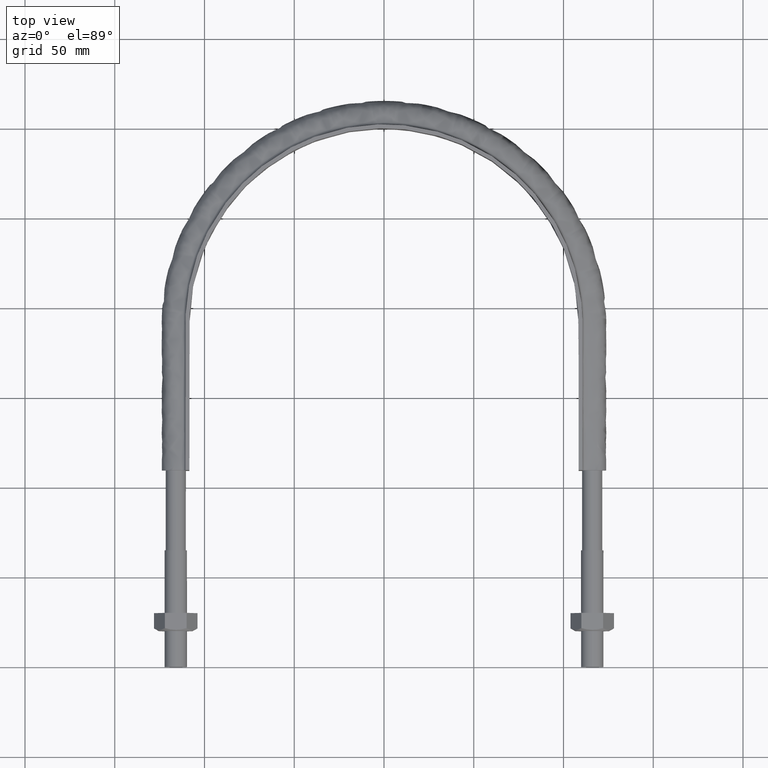
[diagram: clean part render]
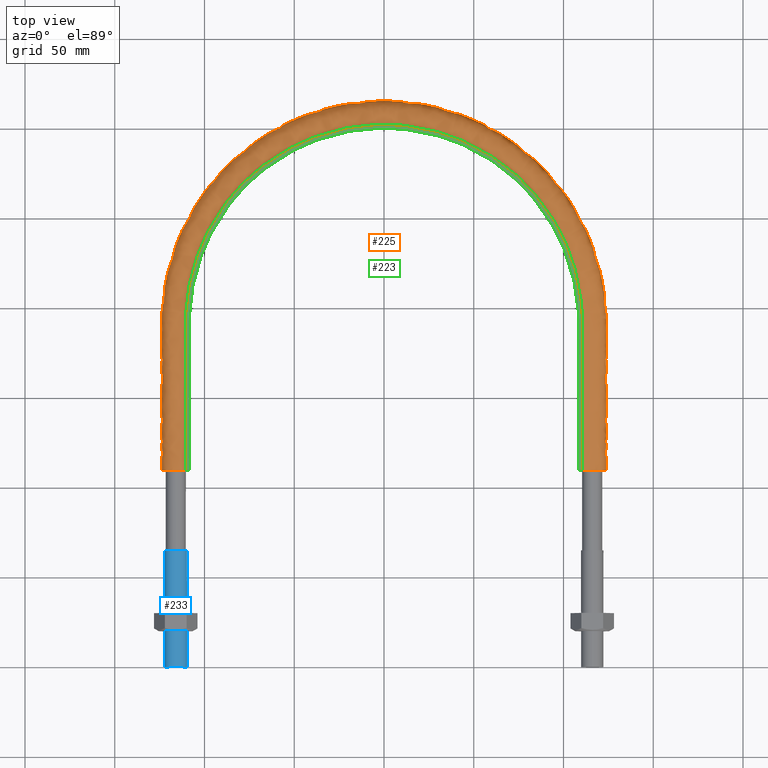
[diagram: same view with three faces highlighted in distinct colors, each labeled with its STEP entity id]
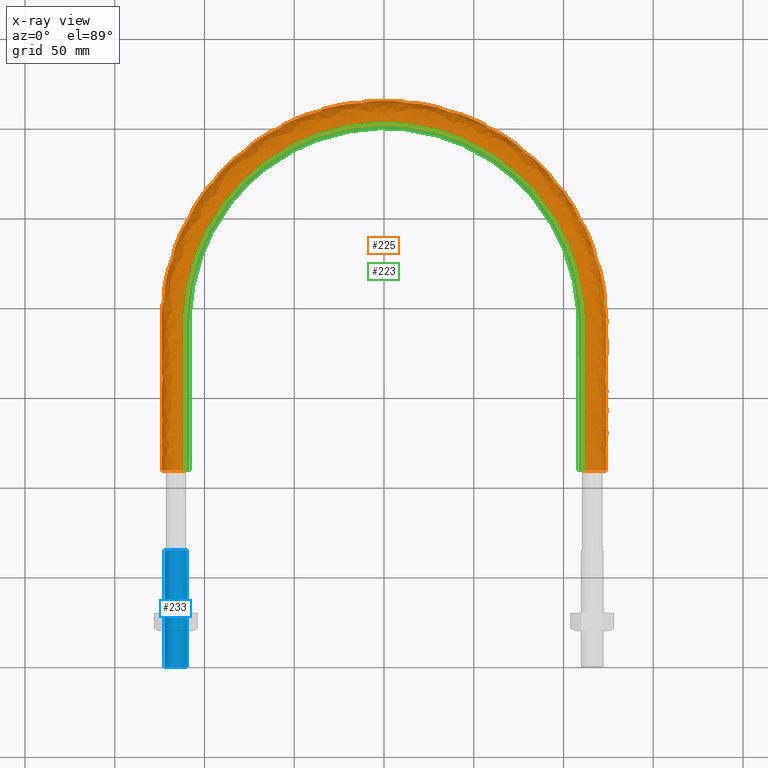
[diagram: x-ray of the same camera — body ghosted, the three highlighted faces saturated]
A machine part, top view with three faces highlighted in distinct colors.
The next image is the same camera in x-ray (body ghosted, the three faces saturated) — at least one of them is partly hidden behind the body in this view.
Their STEP definitions:

[orange] entity #225 — the highlighted face is a freeform B-spline surface patch.
#225 = ADVANCED_FACE( '', ( #275 ), #276, .F. );
#275 = FACE_OUTER_BOUND( '', #564, .T. );
#276 = B_SPLINE_SURFACE_WITH_KNOTS( '', 3, 3, ( ( #565, #566, #567, #568, #569, #570, #571, #572, #573, #574, #575, #576, #577, #578, #579, #580, #581 ), ( #582, #583, #584, #585, #586, #587, #588, #589, #590, #591, #592, #593, #594, #595, #596, #597, #598 ), ( #599, #600, #601, #602, #603, #604, #605, #606, #607, #608, #609, #610, #611, #612, #613, #614, #615 ), ( #616, #617, #618, #619, #620, #621, #622, #623, #624, #625, #626, #627, #628, #629, #630, #631, #632 ), ( #633, #634, #635, #636, #637, #638, #639, #640, #641, #642, #643, #644, #645, #646, #647, #648, #649 ), ( #650, #651, #652, #653, #654, #655, #656, #657, #658, #659, #660, #661, #662, #663, #664, #665, #666 ), ( #667, #668, #669, #670, #671, #672, #673, #674, #675, #676, #677, #678, #679, #680, #681, #682, #683 ), ( #684, #685, #686, #687, #688, #689, #690, #691, #692, #693, #694, #695, #696, #697, #698, #699, #700 ), ( #701, #702, #703, #704, #705, #706, #707, #708, #709, #710, #711, #712, #713, #714, #715, #716, #717 ), ( #718, #719, #720, #721, #722, #723, #724, #725, #726, #727, #728, #729, #730, #731, #732, #733, #734 ), ( #735, #736, #737, #738, #739, #740, #741, #742, #743, #744, #745, #746, #747, #748, #749, #750, #751 ), ( #752, #753, #754, #755, #756, #757, #758, #759, #760, #761, #762, #763, #764, #765, #766, #767, #768 ), ( #769, #770, #771, #772, #773, #774, #775, #776, #777, #778, #779, #780, #781, #782, #783, #784, #785 ), ( #786, #787, #788, #789, #790, #791, #792, #793, #794, #795, #796, #797, #798, #799, #800, #801, #802 ), ( #803, #804, #805, #806, #807, #808, #809, #810, #811, #812, #813, #814, #815, #816, #817, #818, #819 ), ( #820, #821, #822, #823, #824, #825, #826, #827, #828, #829, #830, #831, #832, #833, #834, #835, #836 ), ( #837, #838, #839, #840, #841, #842, #843, #844, #845, #846, #847, #848, #849, #850, #851, #852, #853 ), ( #854, #855, #856, #857, #858, #859, #860, #861, #862, #863, #864, #865, #866, #867, #868, #869, #870 ), ( #871, #872, #873, #874, #875, #876, #877, #878, #879, #880, #881, #882, #883, #884, #885, #886, #887 ), ( #888, #889, #890, #891, #892, #893, #894, #895, #896, #897, #898, #899, #900, #901, #902, #903, #904 ), ( #905, #906, #907, #908, #909, #910, #911, #912, #913, #914, #915, #916, #917, #918, #919, #920, #921 ), ( #922, #923, #924, #925, #926, #927, #928, #929, #930, #931, #932, #933, #934, #935, #936, #937, #938 ), ( #939, #940, #941, #942, #943, #944, #945, #946, #947, #948, #949, #950, #951, #952, #953, #954, #955 ), ( #956, #957, #958, #959, #960, #961, #962, #963, #964, #965, #966, #967, #968, #969, #970, #971, #972 ), ( #973, #974, #975, #976, #977, #978, #979, #980, #981, #982, #983, #984, #985, #986, #987, #988, #989 ), ( #990, #991, #992, #993, #994, #995, #996, #997, #998, #999, #1000, #1001, #1002, #1003, #1004, #1005, #1006 ), ( #1007, #1008, #1009, #1010, #1011, #1012, #1013, #1014, #1015, #1016, #1017, #1018, #1019, #1020, #1021, #1022, #1023 ), ( #1024, #1025, #1026, #1027, #1028, #1029, #1030, #1031, #1032, #1033, #1034, #1035, #1036, #1037, #1038, #1039, #1040 ), ( #1041, #1042, #1043, #1044, #1045, #1046, #1047, #1048, #1049, #1050, #1051, #1052, #1053, #1054, #1055, #1056, #1057 ), ( #1058, #1059, #1060, #1061, #1062, #1063, #1064, #1065, #1066, #1067, #1068, #1069, #1070, #1071, #1072, #1073, #1074 ), ( #1075, #1076, #1077, #1078, #1079, #1080, #1081, #1082, #1083, #1084, #1085, #1086, #1087, #1088, #1089, #1090, #1091 ) ), .UNSPECIFIED., .F., .F., .F., ( 4, 3, 1, 1, 1, 3, 3, 1, 1, 1, 3, 3, 1, 1, 1, 3, 4 ), ( 4, 3, 1, 1, 1, 1, 1, 1, 1, 3, 4 ), ( 0.105263157894737, 0.157894736842105, 0.210526315789474, 0.263157894736842, 0.315789473684211, 0.368421052631579, 0.421052631578947, 0.473684210526316, 0.526315789473684, 0.578947368421053, 0.631578947368421, 0.684210526315789, 0.736842105263158, 0.789473684210526, 0.842105263157895, 0.894736842105263, 0.947368421052632 ), ( 0.000000000000000, 1.00000000000000, 2.00000000000000, 3.00000000000000, 4.00000000000000, 5.00000000000000, 6.00000000000000, 7.00000000000000, 8.00000000000000, 9.00000000000000, 10.0000000000000 ), .UNSPECIFIED. );
#564 = EDGE_LOOP( '', ( #1417, #1418, #1419, #1420 ) );
#565 = CARTESIAN_POINT( '', ( 110.600000000000, 109.500000000000, -15.0000000000000 ) );
#566 = CARTESIAN_POINT( '', ( 110.600000000000, 136.866666666667, -15.0000000000000 ) );
#567 = CARTESIAN_POINT( '', ( 110.600000000000, 164.233333333333, -15.0000000000000 ) );
#568 = CARTESIAN_POINT( '', ( 110.600000000000, 191.600000000000, -15.0000000000000 ) );
#569 = CARTESIAN_POINT( '', ( 110.600000000000, 206.066236657480, -15.0000000000000 ) );
#570 = CARTESIAN_POINT( '', ( 104.841264996974, 235.031001602308, -15.0000000000000 ) );
#571 = CARTESIAN_POINT( '', ( 80.2420302850801, 271.840865123178, -15.0000000000000 ) );
#572 = CARTESIAN_POINT( '', ( 43.4266738580984, 296.441597900375, -15.0000000000000 ) );
#573 = CARTESIAN_POINT( '', ( 8.94018970817697E-014, 305.079201049813, -15.0000000000000 ) );
#574 = CARTESIAN_POINT( '', ( -43.4266738580983, 296.441597900375, -15.0000000000000 ) );
#575 = CARTESIAN_POINT( '', ( -80.2420302850801, 271.840865123178, -15.0000000000000 ) );
#576 = CARTESIAN_POINT( '', ( -104.841264996974, 235.031001602308, -15.0000000000000 ) );
#577 = CARTESIAN_POINT( '', ( -110.600000000000, 206.066236657480, -15.0000000000000 ) );
#578 = CARTESIAN_POINT( '', ( -110.600000000000, 191.600000000000, -15.0000000000000 ) );
#579 = CARTESIAN_POINT( '', ( -110.600000000000, 164.233333333333, -15.0000000000000 ) );
#580 = CARTESIAN_POINT( '', ( -110.600000000000, 136.866666666667, -15.0000000000000 ) );
#581 = CARTESIAN_POINT( '', ( -110.600000000000, 109.500000000000, -15.0000000000000 ) );
#582 = CARTESIAN_POINT( '', ( 110.600000000000, 109.500000000000, -13.2666666666667 ) );
#583 = CARTESIAN_POINT( '', ( 110.600000000000, 136.866666666667, -13.2666666666667 ) );
#584 = CARTESIAN_POINT( '', ( 110.600000000000, 164.233333333333, -13.2666666666667 ) );
#585 = CARTESIAN_POINT( '', ( 110.600000000000, 191.600000000000, -13.2666666666667 ) );
#586 = CARTESIAN_POINT( '', ( 110.600000000000, 206.066236657480, -13.2666666666667 ) );
#587 = CARTESIAN_POINT( '', ( 104.841264996974, 235.031001602308, -13.2666666666667 ) );
#588 = CARTESIAN_POINT( '', ( 80.2420302850802, 271.840865123178, -13.2666666666667 ) );
#589 = CARTESIAN_POINT( '', ( 43.4266738580984, 296.441597900375, -13.2666666666667 ) );
#590 = CARTESIAN_POINT( '', ( 9.11366205577465E-014, 305.079201049813, -13.2666666666667 ) );
#591 = CARTESIAN_POINT( '', ( -43.4266738580984, 296.441597900375, -13.2666666666667 ) );
#592 = CARTESIAN_POINT( '', ( -80.2420302850801, 271.840865123178, -13.2666666666667 ) );
#593 = CARTESIAN_POINT( '', ( -104.841264996974, 235.031001602308, -13.2666666666667 ) );
#594 = CARTESIAN_POINT( '', ( -110.600000000000, 206.066236657480, -13.2666666666667 ) );
#595 = CARTESIAN_POINT( '', ( -110.600000000000, 191.600000000000, -13.2666666666667 ) );
#596 = CARTESIAN_POINT( '', ( -110.600000000000, 164.233333333333, -13.2666666666667 ) );
#597 = CARTESIAN_POINT( '', ( -110.600000000000, 136.866666666667, -13.2666666666667 ) );
#598 = CARTESIAN_POINT( '', ( -110.600000000000, 109.500000000000, -13.2666666666667 ) );
#599 = CARTESIAN_POINT( '', ( 110.600000000000, 109.500000000000, -11.5333333333333 ) );
#600 = CARTESIAN_POINT( '', ( 110.600000000000, 136.866666666667, -11.5333333333333 ) );
#601 = CARTESIAN_POINT( '', ( 110.600000000000, 164.233333333333, -11.5333333333333 ) );
#602 = CARTESIAN_POINT( '', ( 110.600000000000, 191.600000000000, -11.5333333333333 ) );
#603 = CARTESIAN_POINT( '', ( 110.600000000000, 206.066236657480, -11.5333333333333 ) );
#604 = CARTESIAN_POINT( '', ( 104.841264996974, 235.031001602308, -11.5333333333333 ) );
#605 = CARTESIAN_POINT( '', ( 80.2420302850802, 271.840865123178, -11.5333333333333 ) );
#606 = CARTESIAN_POINT( '', ( 43.4266738580984, 296.441597900375, -11.5333333333333 ) );
#607 = CARTESIAN_POINT( '', ( 8.59324501298161E-014, 305.079201049813, -11.5333333333333 ) );
#608 = CARTESIAN_POINT( '', ( -43.4266738580983, 296.441597900375, -11.5333333333333 ) );
#609 = CARTESIAN_POINT( '', ( -80.2420302850801, 271.840865123178, -11.5333333333333 ) );
#610 = CARTESIAN_POINT( '', ( -104.841264996974, 235.031001602308, -11.5333333333333 ) );
#611 = CARTESIAN_POINT( '', ( -110.600000000000, 206.066236657480, -11.5333333333333 ) );
#612 = CARTESIAN_POINT( '', ( -110.600000000000, 191.600000000000, -11.5333333333333 ) );
#613 = CARTESIAN_POINT( '', ( -110.600000000000, 164.233333333333, -11.5333333333333 ) );
#614 = CARTESIAN_POINT( '', ( -110.600000000000, 136.866666666667, -11.5333333333333 ) );
#615 = CARTESIAN_POINT( '', ( -110.600000000000, 109.500000000000, -11.5333333333333 ) );
#616 = CARTESIAN_POINT( '', ( 110.600000000000, 109.500000000000, -9.79999999999999 ) );
#617 = CARTESIAN_POINT( '', ( 110.600000000000, 136.866666666667, -9.79999999999999 ) );
#618 = CARTESIAN_POINT( '', ( 110.600000000000, 164.233333333333, -9.79999999999999 ) );
#619 = CARTESIAN_POINT( '', ( 110.600000000000, 191.600000000000, -9.79999999999999 ) );
#620 = CARTESIAN_POINT( '', ( 110.600000000000, 206.066236657480, -9.79999999999999 ) );
#621 = CARTESIAN_POINT( '', ( 104.841264996974, 235.031001602308, -9.79999999999999 ) );
#622 = CARTESIAN_POINT( '', ( 80.2420302850802, 271.840865123178, -9.79999999999999 ) );
#623 = CARTESIAN_POINT( '', ( 43.4266738580984, 296.441597900375, -9.80000000000000 ) );
#624 = CARTESIAN_POINT( '', ( 8.24630031778625E-014, 305.079201049813, -9.79999999999999 ) );
#625 = CARTESIAN_POINT( '', ( -43.4266738580983, 296.441597900375, -9.79999999999999 ) );
#626 = CARTESIAN_POINT( '', ( -80.2420302850801, 271.840865123178, -9.79999999999999 ) );
#627 = CARTESIAN_POINT( '', ( -104.841264996974, 235.031001602308, -9.79999999999999 ) );
#628 = CARTESIAN_POINT( '', ( -110.600000000000, 206.066236657480, -9.79999999999999 ) );
#629 = CARTESIAN_POINT( '', ( -110.600000000000, 191.600000000000, -9.79999999999999 ) );
#630 = CARTESIAN_POINT( '', ( -110.600000000000, 164.233333333333, -9.79999999999999 ) );
#631 = CARTESIAN_POINT( '', ( -110.600000000000, 136.866666666667, -9.79999999999999 ) );
#632 = CARTESIAN_POINT( '', ( -110.600000000000, 109.500000000000, -9.79999999999999 ) );
#633 = CARTESIAN_POINT( '', ( 110.600000000000, 109.500000000000, -9.53823584172332 ) );
#634 = CARTESIAN_POINT( '', ( 110.600000000000, 136.866666666667, -9.53823584172332 ) );
#635 = CARTESIAN_POINT( '', ( 110.600000000000, 164.233333333333, -9.53823584172332 ) );
#636 = CARTESIAN_POINT( '', ( 110.600000000000, 191.600000000000, -9.53823584172332 ) );
#637 = CARTESIAN_POINT( '', ( 110.600000000000, 206.066236657480, -9.53823584172332 ) );
#638 = CARTESIAN_POINT( '', ( 104.841264996974, 235.031001602308, -9.53823584172333 ) );
#639 = CARTESIAN_POINT( '', ( 80.2420302850802, 271.840865123178, -9.53823584172332 ) );
#640 = CARTESIAN_POINT( '', ( 43.4266738580984, 296.441597900375, -9.53823584172333 ) );
#641 = CARTESIAN_POINT( '', ( 8.59324501298161E-014, 305.079201049813, -9.53823584172332 ) );
#642 = CARTESIAN_POINT( '', ( -43.4266738580983, 296.441597900375, -9.53823584172332 ) );
#643 = CARTESIAN_POINT( '', ( -80.2420302850801, 271.840865123178, -9.53823584172333 ) );
#644 = CARTESIAN_POINT( '', ( -104.841264996974, 235.031001602308, -9.53823584172333 ) );
#645 = CARTESIAN_POINT( '', ( -110.600000000000, 206.066236657480, -9.53823584172332 ) );
#646 = CARTESIAN_POINT( '', ( -110.600000000000, 191.600000000000, -9.53823584172332 ) );
#647 = CARTESIAN_POINT( '', ( -110.600000000000, 164.233333333333, -9.53823584172332 ) );
#648 = CARTESIAN_POINT( '', ( -110.600000000000, 136.866666666667, -9.53823584172332 ) );
#649 = CARTESIAN_POINT( '', ( -110.600000000000, 109.500000000000, -9.53823584172332 ) );
#650 = CARTESIAN_POINT( '', ( 110.704136256836, 109.500000000000, -9.01470752517000 ) );
#651 = CARTESIAN_POINT( '', ( 110.704136256836, 136.866666666667, -9.01470752517000 ) );
#652 = CARTESIAN_POINT( '', ( 110.704136256836, 164.233333333333, -9.01470752517000 ) );
#653 = CARTESIAN_POINT( '', ( 110.704136256836, 191.600000000000, -9.01470752517000 ) );
#654 = CARTESIAN_POINT( '', ( 110.704136256836, 206.080045983731, -9.01470752517000 ) );
#655 = CARTESIAN_POINT( '', ( 104.939979073816, 235.071806853384, -9.01470752517000 ) );
#656 = CARTESIAN_POINT( '', ( 80.3175827685775, 271.916440076230, -9.01470752517000 ) );
#657 = CARTESIAN_POINT( '', ( 43.4675625675235, 296.540305557344, -9.01470752517000 ) );
#658 = CARTESIAN_POINT( '', ( 8.94149820688426E-014, 305.186051606582, -9.01470752517000 ) );
#659 = CARTESIAN_POINT( '', ( -43.4675625675235, 296.540305557344, -9.01470752517000 ) );
#660 = CARTESIAN_POINT( '', ( -80.3175827685774, 271.916440076230, -9.01470752517000 ) );
#661 = CARTESIAN_POINT( '', ( -104.939979073816, 235.071806853384, -9.01470752517000 ) );
#662 = CARTESIAN_POINT( '', ( -110.704136256836, 206.080045983731, -9.01470752517000 ) );
#663 = CARTESIAN_POINT( '', ( -110.704136256836, 191.600000000000, -9.01470752517000 ) );
#664 = CARTESIAN_POINT( '', ( -110.704136256836, 164.233333333333, -9.01470752517000 ) );
#665 = CARTESIAN_POINT( '', ( -110.704136256836, 136.866666666667, -9.01470752517000 ) );
#666 = CARTESIAN_POINT( '', ( -110.704136256836, 109.500000000000, -9.01470752517000 ) );
#667 = CARTESIAN_POINT( '', ( 111.148968710939, 109.500000000000, -8.34896871093886 ) );
#668 = CARTESIAN_POINT( '', ( 111.148968710939, 136.866666666667, -8.34896871093886 ) );
#669 = CARTESIAN_POINT( '', ( 111.148968710939, 164.233333333333, -8.34896871093886 ) );
#670 = CARTESIAN_POINT( '', ( 111.148968710939, 191.600000000000, -8.34896871093886 ) );
#671 = CARTESIAN_POINT( '', ( 111.148968710939, 206.139034434753, -8.34896871093886 ) );
#672 = CARTESIAN_POINT( '', ( 105.361649934575, 235.246112138864, -8.34896871093887 ) );
#673 = CARTESIAN_POINT( '', ( 80.6403156732241, 272.239268962697, -8.34896871093886 ) );
#674 = CARTESIAN_POINT( '', ( 43.6422243569071, 296.961948994725, -8.34896871093887 ) );
#675 = CARTESIAN_POINT( '', ( 8.42667059767411E-014, 305.642478569046, -8.34896871093886 ) );
#676 = CARTESIAN_POINT( '', ( -43.6422243569071, 296.961948994725, -8.34896871093886 ) );
#677 = CARTESIAN_POINT( '', ( -80.6403156732240, 272.239268962697, -8.34896871093887 ) );
#678 = CARTESIAN_POINT( '', ( -105.361649934575, 235.246112138864, -8.34896871093886 ) );
#679 = CARTESIAN_POINT( '', ( -111.148968710939, 206.139034434753, -8.34896871093886 ) );
#680 = CARTESIAN_POINT( '', ( -111.148968710939, 191.600000000000, -8.34896871093886 ) );
#681 = CARTESIAN_POINT( '', ( -111.148968710939, 164.233333333333, -8.34896871093886 ) );
#682 = CARTESIAN_POINT( '', ( -111.148968710939, 136.866666666667, -8.34896871093886 ) );
#683 = CARTESIAN_POINT( '', ( -111.148968710939, 109.500000000000, -8.34896871093886 ) );
#684 = CARTESIAN_POINT( '', ( 111.814707525170, 109.500000000000, -7.90413625683590 ) );
#685 = CARTESIAN_POINT( '', ( 111.814707525170, 136.866666666667, -7.90413625683590 ) );
#686 = CARTESIAN_POINT( '', ( 111.814707525170, 164.233333333333, -7.90413625683590 ) );
#687 = CARTESIAN_POINT( '', ( 111.814707525170, 191.600000000000, -7.90413625683590 ) );
#688 = CARTESIAN_POINT( '', ( 111.814707525170, 206.227316890483, -7.90413625683590 ) );
#689 = CARTESIAN_POINT( '', ( 105.992724974734, 235.506978433578, -7.90413625683590 ) );
#690 = CARTESIAN_POINT( '', ( 81.1233195981200, 272.722416534538, -7.90413625683590 ) );
#691 = CARTESIAN_POINT( '', ( 43.9036241974161, 297.592982992900, -7.90413625683590 ) );
#692 = CARTESIAN_POINT( '', ( 8.26156342858662E-014, 306.325569791305, -7.90413625683590 ) );
#693 = CARTESIAN_POINT( '', ( -43.9036241974160, 297.592982992900, -7.90413625683589 ) );
#694 = CARTESIAN_POINT( '', ( -81.1233195981199, 272.722416534538, -7.90413625683590 ) );
#695 = CARTESIAN_POINT( '', ( -105.992724974733, 235.506978433578, -7.90413625683590 ) );
#696 = CARTESIAN_POINT( '', ( -111.814707525170, 206.227316890483, -7.90413625683590 ) );
#697 = CARTESIAN_POINT( '', ( -111.814707525170, 191.600000000000, -7.90413625683590 ) );
#698 = CARTESIAN_POINT( '', ( -111.814707525170, 164.233333333333, -7.90413625683590 ) );
#699 = CARTESIAN_POINT( '', ( -111.814707525170, 136.866666666667, -7.90413625683590 ) );
#700 = CARTESIAN_POINT( '', ( -111.814707525170, 109.500000000000, -7.90413625683590 ) );
#701 = CARTESIAN_POINT( '', ( 112.338235841723, 109.500000000000, -7.79999999999999 ) );
#702 = CARTESIAN_POINT( '', ( 112.338235841723, 136.866666666667, -7.79999999999999 ) );
#703 = CARTESIAN_POINT( '', ( 112.338235841723, 164.233333333333, -7.79999999999999 ) );
#704 = CARTESIAN_POINT( '', ( 112.338235841723, 191.600000000000, -7.79999999999999 ) );
#705 = CARTESIAN_POINT( '', ( 112.338235841723, 206.296741061707, -7.79999999999999 ) );
#706 = CARTESIAN_POINT( '', ( 106.488994151670, 235.712120283800, -7.79999999999999 ) );
#707 = CARTESIAN_POINT( '', ( 81.5031475821342, 273.102357480635, -7.79999999999999 ) );
#708 = CARTESIAN_POINT( '', ( 44.1091856210909, 298.089219894955, -7.79999999999999 ) );
#709 = CARTESIAN_POINT( '', ( 7.74772465302014E-014, 306.862743815107, -7.79999999999999 ) );
#710 = CARTESIAN_POINT( '', ( -44.1091856210909, 298.089219894956, -7.79999999999998 ) );
#711 = CARTESIAN_POINT( '', ( -81.5031475821342, 273.102357480635, -7.79999999999999 ) );
#712 = CARTESIAN_POINT( '', ( -106.488994151670, 235.712120283800, -7.79999999999999 ) );
#713 = CARTESIAN_POINT( '', ( -112.338235841723, 206.296741061707, -7.79999999999999 ) );
#714 = CARTESIAN_POINT( '', ( -112.338235841723, 191.600000000000, -7.79999999999999 ) );
#715 = CARTESIAN_POINT( '', ( -112.338235841723, 164.233333333333, -7.79999999999999 ) );
#716 = CARTESIAN_POINT( '', ( -112.338235841723, 136.866666666667, -7.79999999999999 ) );
#717 = CARTESIAN_POINT( '', ( -112.338235841723, 109.500000000000, -7.79999999999999 ) );
#718 = CARTESIAN_POINT( '', ( 112.600000000000, 109.500000000000, -7.79999999999999 ) );
#719 = CARTESIAN_POINT( '', ( 112.600000000000, 136.866666666667, -7.79999999999999 ) );
#720 = CARTESIAN_POINT( '', ( 112.600000000000, 164.233333333333, -7.79999999999999 ) );
#721 = CARTESIAN_POINT( '', ( 112.600000000000, 191.600000000000, -7.79999999999999 ) );
#722 = CARTESIAN_POINT( '', ( 112.600000000000, 206.331453147319, -7.79999999999999 ) );
#723 = CARTESIAN_POINT( '', ( 106.737128740138, 235.814691208912, -7.79999999999999 ) );
#724 = CARTESIAN_POINT( '', ( 81.6930615741413, 273.292327953684, -7.79999999999999 ) );
#725 = CARTESIAN_POINT( '', ( 44.2119663329284, 298.337338345983, -7.79999999999999 ) );
#726 = CARTESIAN_POINT( '', ( 8.09795848182879E-014, 307.131330827008, -7.79999999999998 ) );
#727 = CARTESIAN_POINT( '', ( -44.2119663329283, 298.337338345983, -7.79999999999998 ) );
#728 = CARTESIAN_POINT( '', ( -81.6930615741412, 273.292327953684, -7.79999999999999 ) );
#729 = CARTESIAN_POINT( '', ( -106.737128740138, 235.814691208912, -7.79999999999999 ) );
#730 = CARTESIAN_POINT( '', ( -112.600000000000, 206.331453147319, -7.79999999999999 ) );
#731 = CARTESIAN_POINT( '', ( -112.600000000000, 191.600000000000, -7.79999999999999 ) );
#732 = CARTESIAN_POINT( '', ( -112.600000000000, 164.233333333333, -7.79999999999999 ) );
#733 = CARTESIAN_POINT( '', ( -112.600000000000, 136.866666666667, -7.79999999999999 ) );
#734 = CARTESIAN_POINT( '', ( -112.600000000000, 109.500000000000, -7.79999999999999 ) );
#735 = CARTESIAN_POINT( '', ( 113.733333333333, 109.500000000000, -7.79999999999999 ) );
#736 = CARTESIAN_POINT( '', ( 113.733333333333, 136.866666666667, -7.79999999999999 ) );
#737 = CARTESIAN_POINT( '', ( 113.733333333333, 164.233333333333, -7.79999999999999 ) );
#738 = CARTESIAN_POINT( '', ( 113.733333333333, 191.600000000000, -7.79999999999999 ) );
#739 = CARTESIAN_POINT( '', ( 113.733333333333, 206.481742491562, -7.79999999999999 ) );
#740 = CARTESIAN_POINT( '', ( 107.811451527931, 236.258781985988, -7.80000000000000 ) );
#741 = CARTESIAN_POINT( '', ( 82.5153126379426, 274.114823557638, -7.79999999999999 ) );
#742 = CARTESIAN_POINT( '', ( 44.6569654019987, 299.411591265161, -7.80000000000000 ) );
#743 = CARTESIAN_POINT( '', ( 8.80608849548230E-014, 308.294204367419, -7.79999999999999 ) );
#744 = CARTESIAN_POINT( '', ( -44.6569654019987, 299.411591265161, -7.79999999999999 ) );
#745 = CARTESIAN_POINT( '', ( -82.5153126379425, 274.114823557638, -7.80000000000000 ) );
#746 = CARTESIAN_POINT( '', ( -107.811451527931, 236.258781985988, -7.79999999999999 ) );
#747 = CARTESIAN_POINT( '', ( -113.733333333333, 206.481742491562, -7.79999999999999 ) );
#748 = CARTESIAN_POINT( '', ( -113.733333333333, 191.600000000000, -7.79999999999999 ) );
#749 = CARTESIAN_POINT( '', ( -113.733333333333, 164.233333333333, -7.79999999999999 ) );
#750 = CARTESIAN_POINT( '', ( -113.733333333333, 136.866666666667, -7.79999999999999 ) );
#751 = CARTESIAN_POINT( '', ( -113.733333333333, 109.500000000000, -7.79999999999999 ) );
#752 = CARTESIAN_POINT( '', ( 114.866666666667, 109.500000000000, -7.79999999999999 ) );
#753 = CARTESIAN_POINT( '', ( 114.866666666667, 136.866666666667, -7.79999999999999 ) );
#754 = CARTESIAN_POINT( '', ( 114.866666666667, 164.233333333333, -7.79999999999999 ) );
#755 = CARTESIAN_POINT( '', ( 114.866666666667, 191.600000000000, -7.79999999999999 ) );
#756 = CARTESIAN_POINT( '', ( 114.866666666667, 206.632031835804, -7.79999999999999 ) );
#757 = CARTESIAN_POINT( '', ( 108.885774315724, 236.702872763064, -7.80000000000000 ) );
#758 = CARTESIAN_POINT( '', ( 83.3375637017439, 274.937319161592, -7.79999999999999 ) );
#759 = CARTESIAN_POINT( '', ( 45.1019644710690, 300.485844184339, -7.80000000000000 ) );
#760 = CARTESIAN_POINT( '', ( 8.64685677114742E-014, 309.457077907831, -7.79999999999999 ) );
#761 = CARTESIAN_POINT( '', ( -45.1019644710690, 300.485844184339, -7.79999999999999 ) );
#762 = CARTESIAN_POINT( '', ( -83.3375637017439, 274.937319161591, -7.80000000000000 ) );
#763 = CARTESIAN_POINT( '', ( -108.885774315724, 236.702872763064, -7.79999999999999 ) );
#764 = CARTESIAN_POINT( '', ( -114.866666666667, 206.632031835804, -7.79999999999999 ) );
#765 = CARTESIAN_POINT( '', ( -114.866666666667, 191.600000000000, -7.79999999999999 ) );
#766 = CARTESIAN_POINT( '', ( -114.866666666667, 164.233333333333, -7.79999999999999 ) );
#767 = CARTESIAN_POINT( '', ( -114.866666666667, 136.866666666667, -7.79999999999999 ) );
#768 = CARTESIAN_POINT( '', ( -114.866666666667, 109.500000000000, -7.79999999999999 ) );
#769 = CARTESIAN_POINT( '', ( 116.000000000000, 109.500000000000, -7.79999999999999 ) );
#770 = CARTESIAN_POINT( '', ( 116.000000000000, 136.866666666667, -7.79999999999999 ) );
#771 = CARTESIAN_POINT( '', ( 116.000000000000, 164.233333333333, -7.79999999999999 ) );
#772 = CARTESIAN_POINT( '', ( 116.000000000000, 191.600000000000, -7.79999999999999 ) );
#773 = CARTESIAN_POINT( '', ( 116.000000000000, 206.782321180046, -7.79999999999999 ) );
#774 = CARTESIAN_POINT( '', ( 109.960097103517, 237.146963540139, -7.80000000000000 ) );
#775 = CARTESIAN_POINT( '', ( 84.1598147655452, 275.759814765545, -7.79999999999999 ) );
#776 = CARTESIAN_POINT( '', ( 45.5469635401394, 301.560097103517, -7.80000000000000 ) );
#777 = CARTESIAN_POINT( '', ( 8.66109739441021E-014, 310.619951448241, -7.79999999999999 ) );
#778 = CARTESIAN_POINT( '', ( -45.5469635401393, 301.560097103517, -7.79999999999999 ) );
#779 = CARTESIAN_POINT( '', ( -84.1598147655451, 275.759814765545, -7.80000000000000 ) );
#780 = CARTESIAN_POINT( '', ( -109.960097103517, 237.146963540139, -7.79999999999999 ) );
#781 = CARTESIAN_POINT( '', ( -116.000000000000, 206.782321180046, -7.79999999999999 ) );
#782 = CARTESIAN_POINT( '', ( -116.000000000000, 191.600000000000, -7.79999999999999 ) );
#783 = CARTESIAN_POINT( '', ( -116.000000000000, 164.233333333333, -7.79999999999999 ) );
#784 = CARTESIAN_POINT( '', ( -116.000000000000, 136.866666666667, -7.79999999999999 ) );
#785 = CARTESIAN_POINT( '', ( -116.000000000000, 109.500000000000, -7.79999999999999 ) );
#786 = CARTESIAN_POINT( '', ( 118.037390224717, 109.500000000000, -7.79999999999998 ) );
#787 = CARTESIAN_POINT( '', ( 118.037390224717, 136.866666666667, -7.79999999999998 ) );
#788 = CARTESIAN_POINT( '', ( 118.037390224717, 164.233333333333, -7.79999999999998 ) );
#789 = CARTESIAN_POINT( '', ( 118.037390224717, 191.600000000000, -7.79999999999998 ) );
#790 = CARTESIAN_POINT( '', ( 118.037390224717, 207.052495921963, -7.79999999999998 ) );
#791 = CARTESIAN_POINT( '', ( 111.891404232376, 237.945304311993, -7.79999999999998 ) );
#792 = CARTESIAN_POINT( '', ( 85.6379732475911, 277.238412856752, -7.79999999999998 ) );
#793 = CARTESIAN_POINT( '', ( 46.3469371460206, 303.491278629759, -7.79999999999998 ) );
#794 = CARTESIAN_POINT( '', ( 7.81933598580077E-014, 312.710446022196, -7.79999999999998 ) );
#795 = CARTESIAN_POINT( '', ( -46.3469371460206, 303.491278629759, -7.79999999999997 ) );
#796 = CARTESIAN_POINT( '', ( -85.6379732475911, 277.238412856752, -7.79999999999998 ) );
#797 = CARTESIAN_POINT( '', ( -111.891404232376, 237.945304311993, -7.79999999999998 ) );
#798 = CARTESIAN_POINT( '', ( -118.037390224717, 207.052495921963, -7.79999999999998 ) );
#799 = CARTESIAN_POINT( '', ( -118.037390224717, 191.600000000000, -7.79999999999998 ) );
#800 = CARTESIAN_POINT( '', ( -118.037390224717, 164.233333333333, -7.79999999999998 ) );
#801 = CARTESIAN_POINT( '', ( -118.037390224717, 136.866666666667, -7.79999999999998 ) );
#802 = CARTESIAN_POINT( '', ( -118.037390224717, 109.500000000000, -7.79999999999998 ) );
#803 = CARTESIAN_POINT( '', ( 122.112170674152, 109.500000000000, -6.11217067415153 ) );
#804 = CARTESIAN_POINT( '', ( 122.112170674152, 136.866666666667, -6.11217067415153 ) );
#805 = CARTESIAN_POINT( '', ( 122.112170674152, 164.233333333333, -6.11217067415153 ) );
#806 = CARTESIAN_POINT( '', ( 122.112170674152, 191.600000000000, -6.11217067415153 ) );
#807 = CARTESIAN_POINT( '', ( 122.112170674152, 207.592845405796, -6.11217067415153 ) );
#808 = CARTESIAN_POINT( '', ( 115.754018490095, 239.541985855702, -6.11217067415154 ) );
#809 = CARTESIAN_POINT( '', ( 88.5942902116830, 280.195609039167, -6.11217067415154 ) );
#810 = CARTESIAN_POINT( '', ( 47.9468843577832, 307.353641682242, -6.11217067415154 ) );
#811 = CARTESIAN_POINT( '', ( 6.82970255897261E-014, 316.891435170106, -6.11217067415153 ) );
#812 = CARTESIAN_POINT( '', ( -47.9468843577832, 307.353641682242, -6.11217067415153 ) );
#813 = CARTESIAN_POINT( '', ( -88.5942902116830, 280.195609039166, -6.11217067415154 ) );
#814 = CARTESIAN_POINT( '', ( -115.754018490095, 239.541985855702, -6.11217067415153 ) );
#815 = CARTESIAN_POINT( '', ( -122.112170674151, 207.592845405796, -6.11217067415153 ) );
#816 = CARTESIAN_POINT( '', ( -122.112170674151, 191.600000000000, -6.11217067415153 ) );
#817 = CARTESIAN_POINT( '', ( -122.112170674151, 164.233333333333, -6.11217067415153 ) );
#818 = CARTESIAN_POINT( '', ( -122.112170674151, 136.866666666667, -6.11217067415153 ) );
#819 = CARTESIAN_POINT( '', ( -122.112170674151, 109.500000000000, -6.11217067415153 ) );
#820 = CARTESIAN_POINT( '', ( 124.643914662924, 109.500000000000, 5.06449248730035E-015 ) );
#821 = CARTESIAN_POINT( '', ( 124.643914662924, 136.866666666667, 5.06449248730035E-015 ) );
#822 = CARTESIAN_POINT( '', ( 124.643914662924, 164.233333333333, 5.06449248730035E-015 ) );
#823 = CARTESIAN_POINT( '', ( 124.643914662924, 191.600000000000, 5.06449248730035E-015 ) );
#824 = CARTESIAN_POINT( '', ( 124.643914662924, 207.928575532733, 5.06449248730035E-015 ) );
#825 = CARTESIAN_POINT( '', ( 118.153939307739, 240.534036580994, 5.06449248730035E-015 ) );
#826 = CARTESIAN_POINT( '', ( 90.4311100834838, 282.032975187197, 5.06449248730035E-015 ) );
#827 = CARTESIAN_POINT( '', ( 48.9409641090728, 309.753406420963, 5.06449248730035E-015 ) );
#828 = CARTESIAN_POINT( '', ( 7.20845926505793E-014, 319.489168783905, 5.06449248730035E-015 ) );
#829 = CARTESIAN_POINT( '', ( -48.9409641090728, 309.753406420963, 5.06449248730035E-015 ) );
#830 = CARTESIAN_POINT( '', ( -90.4311100834838, 282.032975187197, 5.06449248730035E-015 ) );
#831 = CARTESIAN_POINT( '', ( -118.153939307738, 240.534036580994, 5.06449248730035E-015 ) );
#832 = CARTESIAN_POINT( '', ( -124.643914662924, 207.928575532733, 5.06449248730035E-015 ) );
#833 = CARTESIAN_POINT( '', ( -124.643914662924, 191.600000000000, 5.06449248730035E-015 ) );
#834 = CARTESIAN_POINT( '', ( -124.643914662924, 164.233333333333, 5.06449248730035E-015 ) );
#835 = CARTESIAN_POINT( '', ( -124.643914662924, 136.866666666667, 5.06449248730035E-015 ) );
#836 = CARTESIAN_POINT( '', ( -124.643914662924, 109.500000000000, 5.06449248730035E-015 ) );
#837 = CARTESIAN_POINT( '', ( 122.112170674152, 109.500000000000, 6.11217067415154 ) );
#838 = CARTESIAN_POINT( '', ( 122.112170674152, 136.866666666667, 6.11217067415154 ) );
#839 = CARTESIAN_POINT( '', ( 122.112170674152, 164.233333333333, 6.11217067415154 ) );
#840 = CARTESIAN_POINT( '', ( 122.112170674152, 191.600000000000, 6.11217067415154 ) );
#841 = CARTESIAN_POINT( '', ( 122.112170674152, 207.592845405796, 6.11217067415154 ) );
#842 = CARTESIAN_POINT( '', ( 115.754018490095, 239.541985855702, 6.11217067415155 ) );
#843 = CARTESIAN_POINT( '', ( 88.5942902116830, 280.195609039167, 6.11217067415155 ) );
#844 = CARTESIAN_POINT( '', ( 47.9468843577832, 307.353641682242, 6.11217067415155 ) );
#845 = CARTESIAN_POINT( '', ( 7.17664725416797E-014, 316.891435170106, 6.11217067415154 ) );
#846 = CARTESIAN_POINT( '', ( -47.9468843577832, 307.353641682242, 6.11217067415154 ) );
#847 = CARTESIAN_POINT( '', ( -88.5942902116830, 280.195609039166, 6.11217067415155 ) );
#848 = CARTESIAN_POINT( '', ( -115.754018490095, 239.541985855702, 6.11217067415154 ) );
#849 = CARTESIAN_POINT( '', ( -122.112170674151, 207.592845405796, 6.11217067415154 ) );
#850 = CARTESIAN_POINT( '', ( -122.112170674151, 191.600000000000, 6.11217067415154 ) );
#851 = CARTESIAN_POINT( '', ( -122.112170674151, 164.233333333333, 6.11217067415154 ) );
#852 = CARTESIAN_POINT( '', ( -122.112170674151, 136.866666666667, 6.11217067415154 ) );
#853 = CARTESIAN_POINT( '', ( -122.112170674151, 109.500000000000, 6.11217067415154 ) );
#854 = CARTESIAN_POINT( '', ( 118.037390224717, 109.500000000000, 7.79999999999999 ) );
#855 = CARTESIAN_POINT( '', ( 118.037390224717, 136.866666666667, 7.79999999999999 ) );
#856 = CARTESIAN_POINT( '', ( 118.037390224717, 164.233333333333, 7.79999999999999 ) );
#857 = CARTESIAN_POINT( '', ( 118.037390224717, 191.600000000000, 7.79999999999999 ) );
#858 = CARTESIAN_POINT( '', ( 118.037390224717, 207.052495921963, 7.79999999999999 ) );
#859 = CARTESIAN_POINT( '', ( 111.891404232376, 237.945304311993, 7.79999999999999 ) );
#860 = CARTESIAN_POINT( '', ( 85.6379732475911, 277.238412856752, 7.79999999999999 ) );
#861 = CARTESIAN_POINT( '', ( 46.3469371460206, 303.491278629759, 7.80000000000000 ) );
#862 = CARTESIAN_POINT( '', ( 7.81933598580077E-014, 312.710446022196, 7.79999999999999 ) );
#863 = CARTESIAN_POINT( '', ( -46.3469371460206, 303.491278629759, 7.79999999999999 ) );
#864 = CARTESIAN_POINT( '', ( -85.6379732475911, 277.238412856752, 7.79999999999999 ) );
#865 = CARTESIAN_POINT( '', ( -111.891404232376, 237.945304311993, 7.79999999999999 ) );
#866 = CARTESIAN_POINT( '', ( -118.037390224717, 207.052495921963, 7.79999999999999 ) );
#867 = CARTESIAN_POINT( '', ( -118.037390224717, 191.600000000000, 7.79999999999999 ) );
#868 = CARTESIAN_POINT( '', ( -118.037390224717, 164.233333333333, 7.79999999999999 ) );
#869 = CARTESIAN_POINT( '', ( -118.037390224717, 136.866666666667, 7.79999999999999 ) );
#870 = CARTESIAN_POINT( '', ( -118.037390224717, 109.500000000000, 7.79999999999999 ) );
#871 = CARTESIAN_POINT( '', ( 116.000000000000, 109.500000000000, 7.79999999999999 ) );
#872 = CARTESIAN_POINT( '', ( 116.000000000000, 136.866666666667, 7.79999999999999 ) );
#873 = CARTESIAN_POINT( '', ( 116.000000000000, 164.233333333333, 7.79999999999999 ) );
#874 = CARTESIAN_POINT( '', ( 116.000000000000, 191.600000000000, 7.79999999999999 ) );
#875 = CARTESIAN_POINT( '', ( 116.000000000000, 206.782321180046, 7.79999999999999 ) );
#876 = CARTESIAN_POINT( '', ( 109.960097103517, 237.146963540139, 7.79999999999999 ) );
#877 = CARTESIAN_POINT( '', ( 84.1598147655452, 275.759814765545, 7.79999999999999 ) );
#878 = CARTESIAN_POINT( '', ( 45.5469635401393, 301.560097103517, 7.79999999999999 ) );
#879 = CARTESIAN_POINT( '', ( 7.96720800401948E-014, 310.619951448241, 7.79999999999999 ) );
#880 = CARTESIAN_POINT( '', ( -45.5469635401393, 301.560097103517, 7.79999999999999 ) );
#881 = CARTESIAN_POINT( '', ( -84.1598147655451, 275.759814765545, 7.80000000000000 ) );
#882 = CARTESIAN_POINT( '', ( -109.960097103517, 237.146963540139, 7.79999999999999 ) );
#883 = CARTESIAN_POINT( '', ( -116.000000000000, 206.782321180046, 7.79999999999999 ) );
#884 = CARTESIAN_POINT( '', ( -116.000000000000, 191.600000000000, 7.79999999999999 ) );
#885 = CARTESIAN_POINT( '', ( -116.000000000000, 164.233333333333, 7.79999999999999 ) );
#886 = CARTESIAN_POINT( '', ( -116.000000000000, 136.866666666667, 7.79999999999999 ) );
#887 = CARTESIAN_POINT( '', ( -116.000000000000, 109.500000000000, 7.79999999999999 ) );
#888 = CARTESIAN_POINT( '', ( 114.866666666667, 109.500000000000, 7.79999999999999 ) );
#889 = CARTESIAN_POINT( '', ( 114.866666666667, 136.866666666667, 7.79999999999999 ) );
#890 = CARTESIAN_POINT( '', ( 114.866666666667, 164.233333333333, 7.79999999999999 ) );
#891 = CARTESIAN_POINT( '', ( 114.866666666667, 191.600000000000, 7.79999999999999 ) );
#892 = CARTESIAN_POINT( '', ( 114.866666666667, 206.632031835804, 7.79999999999999 ) );
#893 = CARTESIAN_POINT( '', ( 108.885774315724, 236.702872763064, 7.80000000000000 ) );
#894 = CARTESIAN_POINT( '', ( 83.3375637017439, 274.937319161592, 7.79999999999999 ) );
#895 = CARTESIAN_POINT( '', ( 45.1019644710690, 300.485844184339, 7.80000000000000 ) );
#896 = CARTESIAN_POINT( '', ( 8.64685677114742E-014, 309.457077907831, 7.79999999999999 ) );
#897 = CARTESIAN_POINT( '', ( -45.1019644710690, 300.485844184339, 7.79999999999999 ) );
#898 = CARTESIAN_POINT( '', ( -83.3375637017439, 274.937319161591, 7.80000000000000 ) );
#899 = CARTESIAN_POINT( '', ( -108.885774315724, 236.702872763064, 7.79999999999999 ) );
#900 = CARTESIAN_POINT( '', ( -114.866666666667, 206.632031835804, 7.79999999999999 ) );
#901 = CARTESIAN_POINT( '', ( -114.866666666667, 191.600000000000, 7.79999999999999 ) );
#902 = CARTESIAN_POINT( '', ( -114.866666666667, 164.233333333333, 7.79999999999999 ) );
#903 = CARTESIAN_POINT( '', ( -114.866666666667, 136.866666666667, 7.79999999999999 ) );
#904 = CARTESIAN_POINT( '', ( -114.866666666667, 109.500000000000, 7.79999999999999 ) );
#905 = CARTESIAN_POINT( '', ( 113.733333333333, 109.500000000000, 7.79999999999999 ) );
#906 = CARTESIAN_POINT( '', ( 113.733333333333, 136.866666666667, 7.79999999999999 ) );
#907 = CARTESIAN_POINT( '', ( 113.733333333333, 164.233333333333, 7.79999999999999 ) );
#908 = CARTESIAN_POINT( '', ( 113.733333333333, 191.600000000000, 7.79999999999999 ) );
#909 = CARTESIAN_POINT( '', ( 113.733333333333, 206.481742491562, 7.79999999999999 ) );
#910 = CARTESIAN_POINT( '', ( 107.811451527931, 236.258781985988, 7.80000000000000 ) );
#911 = CARTESIAN_POINT( '', ( 82.5153126379426, 274.114823557638, 7.79999999999999 ) );
#912 = CARTESIAN_POINT( '', ( 44.6569654019987, 299.411591265161, 7.80000000000000 ) );
#913 = CARTESIAN_POINT( '', ( 8.80608849548230E-014, 308.294204367419, 7.79999999999999 ) );
#914 = CARTESIAN_POINT( '', ( -44.6569654019987, 299.411591265161, 7.79999999999999 ) );
#915 = CARTESIAN_POINT( '', ( -82.5153126379425, 274.114823557638, 7.80000000000000 ) );
#916 = CARTESIAN_POINT( '', ( -107.811451527931, 236.258781985988, 7.79999999999999 ) );
#917 = CARTESIAN_POINT( '', ( -113.733333333333, 206.481742491562, 7.79999999999999 ) );
#918 = CARTESIAN_POINT( '', ( -113.733333333333, 191.600000000000, 7.79999999999999 ) );
#919 = CARTESIAN_POINT( '', ( -113.733333333333, 164.233333333333, 7.79999999999999 ) );
#920 = CARTESIAN_POINT( '', ( -113.733333333333, 136.866666666667, 7.79999999999999 ) );
#921 = CARTESIAN_POINT( '', ( -113.733333333333, 109.500000000000, 7.79999999999999 ) );
#922 = CARTESIAN_POINT( '', ( 112.600000000000, 109.500000000000, 7.79999999999999 ) );
#923 = CARTESIAN_POINT( '', ( 112.600000000000, 136.866666666667, 7.79999999999999 ) );
#924 = CARTESIAN_POINT( '', ( 112.600000000000, 164.233333333333, 7.79999999999999 ) );
#925 = CARTESIAN_POINT( '', ( 112.600000000000, 191.600000000000, 7.79999999999999 ) );
#926 = CARTESIAN_POINT( '', ( 112.600000000000, 206.331453147319, 7.79999999999999 ) );
#927 = CARTESIAN_POINT( '', ( 106.737128740138, 235.814691208912, 7.80000000000000 ) );
#928 = CARTESIAN_POINT( '', ( 81.6930615741413, 273.292327953684, 7.79999999999999 ) );
#929 = CARTESIAN_POINT( '', ( 44.2119663329284, 298.337338345983, 7.80000000000000 ) );
#930 = CARTESIAN_POINT( '', ( 8.61837552462183E-014, 307.131330827008, 7.79999999999999 ) );
#931 = CARTESIAN_POINT( '', ( -44.2119663329283, 298.337338345983, 7.79999999999999 ) );
#932 = CARTESIAN_POINT( '', ( -81.6930615741413, 273.292327953684, 7.80000000000000 ) );
#933 = CARTESIAN_POINT( '', ( -106.737128740138, 235.814691208912, 7.79999999999999 ) );
#934 = CARTESIAN_POINT( '', ( -112.600000000000, 206.331453147319, 7.79999999999999 ) );
#935 = CARTESIAN_POINT( '', ( -112.600000000000, 191.600000000000, 7.79999999999999 ) );
#936 = CARTESIAN_POINT( '', ( -112.600000000000, 164.233333333333, 7.79999999999999 ) );
#937 = CARTESIAN_POINT( '', ( -112.600000000000, 136.866666666667, 7.79999999999999 ) );
#938 = CARTESIAN_POINT( '', ( -112.600000000000, 109.500000000000, 7.79999999999999 ) );
#939 = CARTESIAN_POINT( '', ( 112.338235841723, 109.500000000000, 7.79999999999999 ) );
#940 = CARTESIAN_POINT( '', ( 112.338235841723, 136.866666666667, 7.79999999999999 ) );
#941 = CARTESIAN_POINT( '', ( 112.338235841723, 164.233333333333, 7.79999999999999 ) );
#942 = CARTESIAN_POINT( '', ( 112.338235841723, 191.600000000000, 7.79999999999999 ) );
#943 = CARTESIAN_POINT( '', ( 112.338235841723, 206.296741061707, 7.79999999999999 ) );
#944 = CARTESIAN_POINT( '', ( 106.488994151670, 235.712120283800, 7.80000000000000 ) );
#945 = CARTESIAN_POINT( '', ( 81.5031475821342, 273.102357480635, 7.79999999999999 ) );
#946 = CARTESIAN_POINT( '', ( 44.1091856210909, 298.089219894955, 7.80000000000000 ) );
#947 = CARTESIAN_POINT( '', ( 8.26814169581319E-014, 306.862743815107, 7.79999999999999 ) );
#948 = CARTESIAN_POINT( '', ( -44.1091856210909, 298.089219894955, 7.79999999999999 ) );
#949 = CARTESIAN_POINT( '', ( -81.5031475821341, 273.102357480635, 7.80000000000000 ) );
#950 = CARTESIAN_POINT( '', ( -106.488994151670, 235.712120283800, 7.79999999999999 ) );
#951 = CARTESIAN_POINT( '', ( -112.338235841723, 206.296741061707, 7.79999999999999 ) );
#952 = CARTESIAN_POINT( '', ( -112.338235841723, 191.600000000000, 7.79999999999999 ) );
#953 = CARTESIAN_POINT( '', ( -112.338235841723, 164.233333333333, 7.79999999999999 ) );
#954 = CARTESIAN_POINT( '', ( -112.338235841723, 136.866666666667, 7.79999999999999 ) );
#955 = CARTESIAN_POINT( '', ( -112.338235841723, 109.500000000000, 7.79999999999999 ) );
#956 = CARTESIAN_POINT( '', ( 111.814707525170, 109.500000000000, 7.90413625683590 ) );
#957 = CARTESIAN_POINT( '', ( 111.814707525170, 136.866666666667, 7.90413625683590 ) );
#958 = CARTESIAN_POINT( '', ( 111.814707525170, 164.233333333333, 7.90413625683590 ) );
#959 = CARTESIAN_POINT( '', ( 111.814707525170, 191.600000000000, 7.90413625683590 ) );
#960 = CARTESIAN_POINT( '', ( 111.814707525170, 206.227316890483, 7.90413625683590 ) );
#961 = CARTESIAN_POINT( '', ( 105.992724974734, 235.506978433578, 7.90413625683591 ) );
#962 = CARTESIAN_POINT( '', ( 81.1233195981200, 272.722416534538, 7.90413625683590 ) );
#963 = CARTESIAN_POINT( '', ( 43.9036241974161, 297.592982992900, 7.90413625683591 ) );
#964 = CARTESIAN_POINT( '', ( 7.91461873339126E-014, 306.325569791305, 7.90413625683590 ) );
#965 = CARTESIAN_POINT( '', ( -43.9036241974160, 297.592982992900, 7.90413625683590 ) );
#966 = CARTESIAN_POINT( '', ( -81.1233195981200, 272.722416534538, 7.90413625683591 ) );
#967 = CARTESIAN_POINT( '', ( -105.992724974733, 235.506978433577, 7.90413625683590 ) );
#968 = CARTESIAN_POINT( '', ( -111.814707525170, 206.227316890483, 7.90413625683590 ) );
#969 = CARTESIAN_POINT( '', ( -111.814707525170, 191.600000000000, 7.90413625683590 ) );
#970 = CARTESIAN_POINT( '', ( -111.814707525170, 164.233333333333, 7.90413625683590 ) );
#971 = CARTESIAN_POINT( '', ( -111.814707525170, 136.866666666667, 7.90413625683590 ) );
#972 = CARTESIAN_POINT( '', ( -111.814707525170, 109.500000000000, 7.90413625683590 ) );
#973 = CARTESIAN_POINT( '', ( 111.148968710939, 109.500000000000, 8.34896871093887 ) );
#974 = CARTESIAN_POINT( '', ( 111.148968710939, 136.866666666667, 8.34896871093887 ) );
#975 = CARTESIAN_POINT( '', ( 111.148968710939, 164.233333333333, 8.34896871093887 ) );
#976 = CARTESIAN_POINT( '', ( 111.148968710939, 191.600000000000, 8.34896871093887 ) );
#977 = CARTESIAN_POINT( '', ( 111.148968710939, 206.139034434753, 8.34896871093887 ) );
#978 = CARTESIAN_POINT( '', ( 105.361649934575, 235.246112138864, 8.34896871093887 ) );
#979 = CARTESIAN_POINT( '', ( 80.6403156732241, 272.239268962697, 8.34896871093887 ) );
#980 = CARTESIAN_POINT( '', ( 43.6422243569071, 296.961948994725, 8.34896871093888 ) );
#981 = CARTESIAN_POINT( '', ( 8.42667059767411E-014, 305.642478569046, 8.34896871093887 ) );
#982 = CARTESIAN_POINT( '', ( -43.6422243569071, 296.961948994725, 8.34896871093887 ) );
#983 = CARTESIAN_POINT( '', ( -80.6403156732241, 272.239268962697, 8.34896871093888 ) );
#984 = CARTESIAN_POINT( '', ( -105.361649934575, 235.246112138864, 8.34896871093887 ) );
#985 = CARTESIAN_POINT( '', ( -111.148968710939, 206.139034434753, 8.34896871093887 ) );
#986 = CARTESIAN_POINT( '', ( -111.148968710939, 191.600000000000, 8.34896871093887 ) );
#987 = CARTESIAN_POINT( '', ( -111.148968710939, 164.233333333333, 8.34896871093887 ) );
#988 = CARTESIAN_POINT( '', ( -111.148968710939, 136.866666666667, 8.34896871093887 ) );
#989 = CARTESIAN_POINT( '', ( -111.148968710939, 109.500000000000, 8.34896871093887 ) );
#990 = CARTESIAN_POINT( '', ( 110.704136256836, 109.500000000000, 9.01470752517000 ) );
#991 = CARTESIAN_POINT( '', ( 110.704136256836, 136.866666666667, 9.01470752517000 ) );
#992 = CARTESIAN_POINT( '', ( 110.704136256836, 164.233333333333, 9.01470752517000 ) );
#993 = CARTESIAN_POINT( '', ( 110.704136256836, 191.600000000000, 9.01470752517000 ) );
#994 = CARTESIAN_POINT( '', ( 110.704136256836, 206.080045983731, 9.01470752517000 ) );
#995 = CARTESIAN_POINT( '', ( 104.939979073816, 235.071806853384, 9.01470752517001 ) );
#996 = CARTESIAN_POINT( '', ( 80.3175827685775, 271.916440076230, 9.01470752517000 ) );
#997 = CARTESIAN_POINT( '', ( 43.4675625675235, 296.540305557344, 9.01470752517001 ) );
#998 = CARTESIAN_POINT( '', ( 8.59455351168890E-014, 305.186051606582, 9.01470752517000 ) );
#999 = CARTESIAN_POINT( '', ( -43.4675625675235, 296.540305557344, 9.01470752517000 ) );
#1000 = CARTESIAN_POINT( '', ( -80.3175827685775, 271.916440076230, 9.01470752517001 ) );
#1001 = CARTESIAN_POINT( '', ( -104.939979073816, 235.071806853384, 9.01470752517000 ) );
#1002 = CARTESIAN_POINT( '', ( -110.704136256836, 206.080045983731, 9.01470752517000 ) );
#1003 = CARTESIAN_POINT( '', ( -110.704136256836, 191.600000000000, 9.01470752517000 ) );
#1004 = CARTESIAN_POINT( '', ( -110.704136256836, 164.233333333333, 9.01470752517000 ) );
#1005 = CARTESIAN_POINT( '', ( -110.704136256836, 136.866666666667, 9.01470752517000 ) );
#1006 = CARTESIAN_POINT( '', ( -110.704136256836, 109.500000000000, 9.01470752517000 ) );
#1007 = CARTESIAN_POINT( '', ( 110.600000000000, 109.500000000000, 9.53823584172333 ) );
#1008 = CARTESIAN_POINT( '', ( 110.600000000000, 136.866666666667, 9.53823584172333 ) );
#1009 = CARTESIAN_POINT( '', ( 110.600000000000, 164.233333333333, 9.53823584172333 ) );
#1010 = CARTESIAN_POINT( '', ( 110.600000000000, 191.600000000000, 9.53823584172333 ) );
#1011 = CARTESIAN_POINT( '', ( 110.600000000000, 206.066236657480, 9.53823584172333 ) );
#1012 = CARTESIAN_POINT( '', ( 104.841264996974, 235.031001602308, 9.53823584172333 ) );
#1013 = CARTESIAN_POINT( '', ( 80.2420302850802, 271.840865123178, 9.53823584172333 ) );
#1014 = CARTESIAN_POINT( '', ( 43.4266738580984, 296.441597900375, 9.53823584172333 ) );
#1015 = CARTESIAN_POINT( '', ( 8.41977266538393E-014, 305.079201049813, 9.53823584172333 ) );
#1016 = CARTESIAN_POINT( '', ( -43.4266738580984, 296.441597900375, 9.53823584172333 ) );
#1017 = CARTESIAN_POINT( '', ( -80.2420302850801, 271.840865123178, 9.53823584172333 ) );
#1018 = CARTESIAN_POINT( '', ( -104.841264996974, 235.031001602308, 9.53823584172333 ) );
#1019 = CARTESIAN_POINT( '', ( -110.600000000000, 206.066236657480, 9.53823584172333 ) );
#1020 = CARTESIAN_POINT( '', ( -110.600000000000, 191.600000000000, 9.53823584172333 ) );
#1021 = CARTESIAN_POINT( '', ( -110.600000000000, 164.233333333333, 9.53823584172333 ) );
#1022 = CARTESIAN_POINT( '', ( -110.600000000000, 136.866666666667, 9.53823584172333 ) );
#1023 = CARTESIAN_POINT( '', ( -110.600000000000, 109.500000000000, 9.53823584172333 ) );
#1024 = CARTESIAN_POINT( '', ( 110.600000000000, 109.500000000000, 9.79999999999999 ) );
#1025 = CARTESIAN_POINT( '', ( 110.600000000000, 136.866666666667, 9.79999999999999 ) );
#1026 = CARTESIAN_POINT( '', ( 110.600000000000, 164.233333333333, 9.79999999999999 ) );
#1027 = CARTESIAN_POINT( '', ( 110.600000000000, 191.600000000000, 9.79999999999999 ) );
#1028 = CARTESIAN_POINT( '', ( 110.600000000000, 206.066236657480, 9.79999999999999 ) );
#1029 = CARTESIAN_POINT( '', ( 104.841264996974, 235.031001602308, 9.80000000000000 ) );
#1030 = CARTESIAN_POINT( '', ( 80.2420302850802, 271.840865123178, 9.79999999999999 ) );
#1031 = CARTESIAN_POINT( '', ( 43.4266738580984, 296.441597900375, 9.80000000000000 ) );
#1032 = CARTESIAN_POINT( '', ( 8.41977266538393E-014, 305.079201049813, 9.79999999999999 ) );
#1033 = CARTESIAN_POINT( '', ( -43.4266738580984, 296.441597900375, 9.79999999999999 ) );
#1034 = CARTESIAN_POINT( '', ( -80.2420302850801, 271.840865123178, 9.80000000000000 ) );
#1035 = CARTESIAN_POINT( '', ( -104.841264996974, 235.031001602308, 9.79999999999999 ) );
#1036 = CARTESIAN_POINT( '', ( -110.600000000000, 206.066236657480, 9.79999999999999 ) );
#1037 = CARTESIAN_POINT( '', ( -110.600000000000, 191.600000000000, 9.79999999999999 ) );
#1038 = CARTESIAN_POINT( '', ( -110.600000000000, 164.233333333333, 9.79999999999999 ) );
#1039 = CARTESIAN_POINT( '', ( -110.600000000000, 136.866666666667, 9.79999999999999 ) );
#1040 = CARTESIAN_POINT( '', ( -110.600000000000, 109.500000000000, 9.79999999999999 ) );
#1041 = CARTESIAN_POINT( '', ( 110.600000000000, 109.500000000000, 11.5333333333333 ) );
#1042 = CARTESIAN_POINT( '', ( 110.600000000000, 136.866666666667, 11.5333333333333 ) );
#1043 = CARTESIAN_POINT( '', ( 110.600000000000, 164.233333333333, 11.5333333333333 ) );
#1044 = CARTESIAN_POINT( '', ( 110.600000000000, 191.600000000000, 11.5333333333333 ) );
#1045 = CARTESIAN_POINT( '', ( 110.600000000000, 206.066236657480, 11.5333333333333 ) );
#1046 = CARTESIAN_POINT( '', ( 104.841264996974, 235.031001602308, 11.5333333333333 ) );
#1047 = CARTESIAN_POINT( '', ( 80.2420302850802, 271.840865123178, 11.5333333333333 ) );
#1048 = CARTESIAN_POINT( '', ( 43.4266738580984, 296.441597900375, 11.5333333333333 ) );
#1049 = CARTESIAN_POINT( '', ( 7.72588327499320E-014, 305.079201049813, 11.5333333333333 ) );
#1050 = CARTESIAN_POINT( '', ( -43.4266738580984, 296.441597900375, 11.5333333333333 ) );
#1051 = CARTESIAN_POINT( '', ( -80.2420302850801, 271.840865123178, 11.5333333333333 ) );
#1052 = CARTESIAN_POINT( '', ( -104.841264996974, 235.031001602308, 11.5333333333333 ) );
#1053 = CARTESIAN_POINT( '', ( -110.600000000000, 206.066236657480, 11.5333333333333 ) );
#1054 = CARTESIAN_POINT( '', ( -110.600000000000, 191.600000000000, 11.5333333333333 ) );
#1055 = CARTESIAN_POINT( '', ( -110.600000000000, 164.233333333333, 11.5333333333333 ) );
#1056 = CARTESIAN_POINT( '', ( -110.600000000000, 136.866666666667, 11.5333333333333 ) );
#1057 = CARTESIAN_POINT( '', ( -110.600000000000, 109.500000000000, 11.5333333333333 ) );
#1058 = CARTESIAN_POINT( '', ( 110.600000000000, 109.500000000000, 13.2666666666666 ) );
#1059 = CARTESIAN_POINT( '', ( 110.600000000000, 136.866666666667, 13.2666666666666 ) );
#1060 = CARTESIAN_POINT( '', ( 110.600000000000, 164.233333333333, 13.2666666666666 ) );
#1061 = CARTESIAN_POINT( '', ( 110.600000000000, 191.600000000000, 13.2666666666666 ) );
#1062 = CARTESIAN_POINT( '', ( 110.600000000000, 206.066236657480, 13.2666666666666 ) );
#1063 = CARTESIAN_POINT( '', ( 104.841264996974, 235.031001602308, 13.2666666666667 ) );
#1064 = CARTESIAN_POINT( '', ( 80.2420302850802, 271.840865123178, 13.2666666666666 ) );
#1065 = CARTESIAN_POINT( '', ( 43.4266738580984, 296.441597900375, 13.2666666666666 ) );
#1066 = CARTESIAN_POINT( '', ( 7.72588327499320E-014, 305.079201049813, 13.2666666666666 ) );
#1067 = CARTESIAN_POINT( '', ( -43.4266738580984, 296.441597900375, 13.2666666666666 ) );
#1068 = CARTESIAN_POINT( '', ( -80.2420302850801, 271.840865123178, 13.2666666666667 ) );
#1069 = CARTESIAN_POINT( '', ( -104.841264996974, 235.031001602308, 13.2666666666666 ) );
#1070 = CARTESIAN_POINT( '', ( -110.600000000000, 206.066236657480, 13.2666666666666 ) );
#1071 = CARTESIAN_POINT( '', ( -110.600000000000, 191.600000000000, 13.2666666666666 ) );
#1072 = CARTESIAN_POINT( '', ( -110.600000000000, 164.233333333333, 13.2666666666666 ) );
#1073 = CARTESIAN_POINT( '', ( -110.600000000000, 136.866666666667, 13.2666666666666 ) );
#1074 = CARTESIAN_POINT( '', ( -110.600000000000, 109.500000000000, 13.2666666666666 ) );
#1075 = CARTESIAN_POINT( '', ( 110.600000000000, 109.500000000000, 15.0000000000000 ) );
#1076 = CARTESIAN_POINT( '', ( 110.600000000000, 136.866666666667, 15.0000000000000 ) );
#1077 = CARTESIAN_POINT( '', ( 110.600000000000, 164.233333333333, 15.0000000000000 ) );
#1078 = CARTESIAN_POINT( '', ( 110.600000000000, 191.600000000000, 15.0000000000000 ) );
#1079 = CARTESIAN_POINT( '', ( 110.600000000000, 206.066236657480, 15.0000000000000 ) );
#1080 = CARTESIAN_POINT( '', ( 104.841264996974, 235.031001602308, 15.0000000000000 ) );
#1081 = CARTESIAN_POINT( '', ( 80.2420302850802, 271.840865123178, 15.0000000000000 ) );
#1082 = CARTESIAN_POINT( '', ( 43.4266738580984, 296.441597900375, 15.0000000000000 ) );
#1083 = CARTESIAN_POINT( '', ( 7.55241092739552E-014, 305.079201049813, 15.0000000000000 ) );
#1084 = CARTESIAN_POINT( '', ( -43.4266738580984, 296.441597900375, 15.0000000000000 ) );
#1085 = CARTESIAN_POINT( '', ( -80.2420302850801, 271.840865123178, 15.0000000000000 ) );
#1086 = CARTESIAN_POINT( '', ( -104.841264996974, 235.031001602308, 15.0000000000000 ) );
#1087 = CARTESIAN_POINT( '', ( -110.600000000000, 206.066236657480, 15.0000000000000 ) );
#1088 = CARTESIAN_POINT( '', ( -110.600000000000, 191.600000000000, 15.0000000000000 ) );
#1089 = CARTESIAN_POINT( '', ( -110.600000000000, 164.233333333333, 15.0000000000000 ) );
#1090 = CARTESIAN_POINT( '', ( -110.600000000000, 136.866666666667, 15.0000000000000 ) );
#1091 = CARTESIAN_POINT( '', ( -110.600000000000, 109.500000000000, 15.0000000000000 ) );
#1417 = ORIENTED_EDGE( '', *, *, #1661, .F. );
#1418 = ORIENTED_EDGE( '', *, *, #1666, .T. );
#1419 = ORIENTED_EDGE( '', *, *, #1655, .F. );
#1420 = ORIENTED_EDGE( '', *, *, #1665, .T. );
#1655 = EDGE_CURVE( '', #1738, #1740, #1741, .T. );
#1661 = EDGE_CURVE( '', #1750, #1752, #1753, .T. );
#1665 = EDGE_CURVE( '', #1738, #1752, #1757, .T. );
#1666 = EDGE_CURVE( '', #1750, #1740, #1758, .T. );
#1738 = VERTEX_POINT( '', #1887 );
#1740 = VERTEX_POINT( '', #1890 );
#1741 = B_SPLINE_CURVE_WITH_KNOTS( '', 3, ( #1891, #1892, #1893, #1894, #1895, #1896, #1897, #1898, #1899, #1900, #1901, #1902, #1903, #1904, #1905, #1906, #1907, #1908, #1909, #1910, #1911, #1912, #1913, #1914, #1915, #1916, #1917, #1918, #1919, #1920, #1921 ), .UNSPECIFIED., .F., .F., ( 4, 3, 1, 1, 1, 3, 3, 1, 1, 1, 3, 3, 1, 1, 1, 3, 4 ), ( -0.947368421052632, -0.894736842105263, -0.842105263157895, -0.789473684210526, -0.736842105263158, -0.684210526315789, -0.631578947368421, -0.578947368421053, -0.526315789473684, -0.473684210526316, -0.421052631578947, -0.368421052631579, -0.315789473684211, -0.263157894736842, -0.210526315789474, -0.157894736842105, -0.105263157894737 ), .UNSPECIFIED. );
#1750 = VERTEX_POINT( '', #1952 );
#1752 = VERTEX_POINT( '', #1955 );
#1753 = B_SPLINE_CURVE_WITH_KNOTS( '', 3, ( #1956, #1957, #1958, #1959, #1960, #1961, #1962, #1963, #1964, #1965, #1966, #1967, #1968, #1969, #1970, #1971, #1972, #1973, #1974, #1975, #1976, #1977, #1978, #1979, #1980, #1981, #1982, #1983, #1984, #1985, #1986 ), .UNSPECIFIED., .F., .F., ( 4, 3, 1, 1, 1, 3, 3, 1, 1, 1, 3, 3, 1, 1, 1, 3, 4 ), ( 0.105263157894737, 0.157894736842105, 0.210526315789474, 0.263157894736842, 0.315789473684211, 0.368421052631579, 0.421052631578947, 0.473684210526316, 0.526315789473684, 0.578947368421053, 0.631578947368421, 0.684210526315789, 0.736842105263158, 0.789473684210526, 0.842105263157895, 0.894736842105263, 0.947368421052632 ), .UNSPECIFIED. );
#1757 = B_SPLINE_CURVE_WITH_KNOTS( '', 3, ( #2023, #2024, #2025, #2026, #2027, #2028, #2029, #2030, #2031, #2032, #2033, #2034, #2035, #2036, #2037, #2038, #2039 ), .UNSPECIFIED., .F., .F., ( 4, 3, 1, 1, 1, 1, 1, 1, 1, 3, 4 ), ( -10.0000000000000, -9.00000000000000, -8.00000000000000, -7.00000000000000, -6.00000000000000, -5.00000000000000, -4.00000000000000, -3.00000000000000, -2.00000000000000, -1.00000000000000, 0.000000000000000 ), .UNSPECIFIED. );
#1758 = B_SPLINE_CURVE_WITH_KNOTS( '', 3, ( #2040, #2041, #2042, #2043, #2044, #2045, #2046, #2047, #2048, #2049, #2050, #2051, #2052, #2053, #2054, #2055, #2056 ), .UNSPECIFIED., .F., .F., ( 4, 3, 1, 1, 1, 1, 1, 1, 1, 3, 4 ), ( 0.000000000000000, 1.00000000000000, 2.00000000000000, 3.00000000000000, 4.00000000000000, 5.00000000000000, 6.00000000000000, 7.00000000000000, 8.00000000000000, 9.00000000000000, 10.0000000000000 ), .UNSPECIFIED. );
#1887 = CARTESIAN_POINT( '', ( -110.600000000000, 109.500000000000, 15.0000000000000 ) );
#1890 = CARTESIAN_POINT( '', ( -110.600000000000, 109.500000000000, -15.0000000000000 ) );
#1891 = CARTESIAN_POINT( '', ( -110.600000000000, 109.500000000000, 15.0000000000000 ) );
#1892 = CARTESIAN_POINT( '', ( -110.600000000000, 109.500000000000, 13.2666666666666 ) );
#1893 = CARTESIAN_POINT( '', ( -110.600000000000, 109.500000000000, 11.5333333333333 ) );
#1894 = CARTESIAN_POINT( '', ( -110.600000000000, 109.500000000000, 9.79999999999999 ) );
#1895 = CARTESIAN_POINT( '', ( -110.600000000000, 109.500000000000, 9.53823584172333 ) );
#1896 = CARTESIAN_POINT( '', ( -110.704136256836, 109.500000000000, 9.01470752517000 ) );
#1897 = CARTESIAN_POINT( '', ( -111.148968710939, 109.500000000000, 8.34896871093887 ) );
#1898 = CARTESIAN_POINT( '', ( -111.814707525170, 109.500000000000, 7.90413625683590 ) );
#1899 = CARTESIAN_POINT( '', ( -112.338235841723, 109.500000000000, 7.79999999999999 ) );
#1900 = CARTESIAN_POINT( '', ( -112.600000000000, 109.500000000000, 7.79999999999999 ) );
#1901 = CARTESIAN_POINT( '', ( -113.733333333333, 109.500000000000, 7.79999999999999 ) );
#1902 = CARTESIAN_POINT( '', ( -114.866666666667, 109.500000000000, 7.79999999999999 ) );
#1903 = CARTESIAN_POINT( '', ( -116.000000000000, 109.500000000000, 7.79999999999999 ) );
#1904 = CARTESIAN_POINT( '', ( -118.037390224717, 109.500000000000, 7.79999999999999 ) );
#1905 = CARTESIAN_POINT( '', ( -122.112170674151, 109.500000000000, 6.11217067415154 ) );
#1906 = CARTESIAN_POINT( '', ( -124.643914662924, 109.500000000000, 5.06449248730035E-015 ) );
#1907 = CARTESIAN_POINT( '', ( -122.112170674151, 109.500000000000, -6.11217067415153 ) );
#1908 = CARTESIAN_POINT( '', ( -118.037390224717, 109.500000000000, -7.79999999999998 ) );
#1909 = CARTESIAN_POINT( '', ( -116.000000000000, 109.500000000000, -7.79999999999999 ) );
#1910 = CARTESIAN_POINT( '', ( -114.866666666667, 109.500000000000, -7.79999999999999 ) );
#1911 = CARTESIAN_POINT( '', ( -113.733333333333, 109.500000000000, -7.79999999999999 ) );
#1912 = CARTESIAN_POINT( '', ( -112.600000000000, 109.500000000000, -7.79999999999999 ) );
#1913 = CARTESIAN_POINT( '', ( -112.338235841723, 109.500000000000, -7.79999999999999 ) );
#1914 = CARTESIAN_POINT( '', ( -111.814707525170, 109.500000000000, -7.90413625683590 ) );
#1915 = CARTESIAN_POINT( '', ( -111.148968710939, 109.500000000000, -8.34896871093886 ) );
#1916 = CARTESIAN_POINT( '', ( -110.704136256836, 109.500000000000, -9.01470752517000 ) );
#1917 = CARTESIAN_POINT( '', ( -110.600000000000, 109.500000000000, -9.53823584172332 ) );
#1918 = CARTESIAN_POINT( '', ( -110.600000000000, 109.500000000000, -9.79999999999999 ) );
#1919 = CARTESIAN_POINT( '', ( -110.600000000000, 109.500000000000, -11.5333333333333 ) );
#1920 = CARTESIAN_POINT( '', ( -110.600000000000, 109.500000000000, -13.2666666666667 ) );
#1921 = CARTESIAN_POINT( '', ( -110.600000000000, 109.500000000000, -15.0000000000000 ) );
#1952 = CARTESIAN_POINT( '', ( 110.600000000000, 109.500000000000, -15.0000000000000 ) );
#1955 = CARTESIAN_POINT( '', ( 110.600000000000, 109.500000000000, 15.0000000000000 ) );
#1956 = CARTESIAN_POINT( '', ( 110.600000000000, 109.500000000000, -15.0000000000000 ) );
#1957 = CARTESIAN_POINT( '', ( 110.600000000000, 109.500000000000, -13.2666666666667 ) );
#1958 = CARTESIAN_POINT( '', ( 110.600000000000, 109.500000000000, -11.5333333333333 ) );
#1959 = CARTESIAN_POINT( '', ( 110.600000000000, 109.500000000000, -9.79999999999999 ) );
#1960 = CARTESIAN_POINT( '', ( 110.600000000000, 109.500000000000, -9.53823584172332 ) );
#1961 = CARTESIAN_POINT( '', ( 110.704136256836, 109.500000000000, -9.01470752517000 ) );
#1962 = CARTESIAN_POINT( '', ( 111.148968710939, 109.500000000000, -8.34896871093886 ) );
#1963 = CARTESIAN_POINT( '', ( 111.814707525170, 109.500000000000, -7.90413625683590 ) );
#1964 = CARTESIAN_POINT( '', ( 112.338235841723, 109.500000000000, -7.79999999999999 ) );
#1965 = CARTESIAN_POINT( '', ( 112.600000000000, 109.500000000000, -7.79999999999999 ) );
#1966 = CARTESIAN_POINT( '', ( 113.733333333333, 109.500000000000, -7.79999999999999 ) );
#1967 = CARTESIAN_POINT( '', ( 114.866666666667, 109.500000000000, -7.79999999999999 ) );
#1968 = CARTESIAN_POINT( '', ( 116.000000000000, 109.500000000000, -7.79999999999999 ) );
#1969 = CARTESIAN_POINT( '', ( 118.037390224717, 109.500000000000, -7.79999999999998 ) );
#1970 = CARTESIAN_POINT( '', ( 122.112170674152, 109.500000000000, -6.11217067415153 ) );
#1971 = CARTESIAN_POINT( '', ( 124.643914662924, 109.500000000000, 5.06449248730035E-015 ) );
#1972 = CARTESIAN_POINT( '', ( 122.112170674152, 109.500000000000, 6.11217067415154 ) );
#1973 = CARTESIAN_POINT( '', ( 118.037390224717, 109.500000000000, 7.79999999999999 ) );
#1974 = CARTESIAN_POINT( '', ( 116.000000000000, 109.500000000000, 7.79999999999999 ) );
#1975 = CARTESIAN_POINT( '', ( 114.866666666667, 109.500000000000, 7.79999999999999 ) );
#1976 = CARTESIAN_POINT( '', ( 113.733333333333, 109.500000000000, 7.79999999999999 ) );
#1977 = CARTESIAN_POINT( '', ( 112.600000000000, 109.500000000000, 7.79999999999999 ) );
#1978 = CARTESIAN_POINT( '', ( 112.338235841723, 109.500000000000, 7.79999999999999 ) );
#1979 = CARTESIAN_POINT( '', ( 111.814707525170, 109.500000000000, 7.90413625683590 ) );
#1980 = CARTESIAN_POINT( '', ( 111.148968710939, 109.500000000000, 8.34896871093887 ) );
#1981 = CARTESIAN_POINT( '', ( 110.704136256836, 109.500000000000, 9.01470752517000 ) );
#1982 = CARTESIAN_POINT( '', ( 110.600000000000, 109.500000000000, 9.53823584172333 ) );
#1983 = CARTESIAN_POINT( '', ( 110.600000000000, 109.500000000000, 9.79999999999999 ) );
#1984 = CARTESIAN_POINT( '', ( 110.600000000000, 109.500000000000, 11.5333333333333 ) );
#1985 = CARTESIAN_POINT( '', ( 110.600000000000, 109.500000000000, 13.2666666666666 ) );
#1986 = CARTESIAN_POINT( '', ( 110.600000000000, 109.500000000000, 15.0000000000000 ) );
#2023 = CARTESIAN_POINT( '', ( -110.600000000000, 109.500000000000, 15.0000000000000 ) );
#2024 = CARTESIAN_POINT( '', ( -110.600000000000, 136.866666666667, 15.0000000000000 ) );
#2025 = CARTESIAN_POINT( '', ( -110.600000000000, 164.233333333333, 15.0000000000000 ) );
#2026 = CARTESIAN_POINT( '', ( -110.600000000000, 191.600000000000, 15.0000000000000 ) );
#2027 = CARTESIAN_POINT( '', ( -110.600000000000, 206.066236657480, 15.0000000000000 ) );
#2028 = CARTESIAN_POINT( '', ( -104.841264996974, 235.031001602308, 15.0000000000000 ) );
#2029 = CARTESIAN_POINT( '', ( -80.2420302850801, 271.840865123178, 15.0000000000000 ) );
#2030 = CARTESIAN_POINT( '', ( -43.4266738580984, 296.441597900375, 15.0000000000000 ) );
#2031 = CARTESIAN_POINT( '', ( 7.55241092739552E-014, 305.079201049813, 15.0000000000000 ) );
#2032 = CARTESIAN_POINT( '', ( 43.4266738580984, 296.441597900375, 15.0000000000000 ) );
#2033 = CARTESIAN_POINT( '', ( 80.2420302850802, 271.840865123178, 15.0000000000000 ) );
#2034 = CARTESIAN_POINT( '', ( 104.841264996974, 235.031001602308, 15.0000000000000 ) );
#2035 = CARTESIAN_POINT( '', ( 110.600000000000, 206.066236657480, 15.0000000000000 ) );
#2036 = CARTESIAN_POINT( '', ( 110.600000000000, 191.600000000000, 15.0000000000000 ) );
#2037 = CARTESIAN_POINT( '', ( 110.600000000000, 164.233333333333, 15.0000000000000 ) );
#2038 = CARTESIAN_POINT( '', ( 110.600000000000, 136.866666666667, 15.0000000000000 ) );
#2039 = CARTESIAN_POINT( '', ( 110.600000000000, 109.500000000000, 15.0000000000000 ) );
#2040 = CARTESIAN_POINT( '', ( 110.600000000000, 109.500000000000, -15.0000000000000 ) );
#2041 = CARTESIAN_POINT( '', ( 110.600000000000, 136.866666666667, -15.0000000000000 ) );
#2042 = CARTESIAN_POINT( '', ( 110.600000000000, 164.233333333333, -15.0000000000000 ) );
#2043 = CARTESIAN_POINT( '', ( 110.600000000000, 191.600000000000, -15.0000000000000 ) );
#2044 = CARTESIAN_POINT( '', ( 110.600000000000, 206.066236657480, -15.0000000000000 ) );
#2045 = CARTESIAN_POINT( '', ( 104.841264996974, 235.031001602308, -15.0000000000000 ) );
#2046 = CARTESIAN_POINT( '', ( 80.2420302850801, 271.840865123178, -15.0000000000000 ) );
#2047 = CARTESIAN_POINT( '', ( 43.4266738580984, 296.441597900375, -15.0000000000000 ) );
#2048 = CARTESIAN_POINT( '', ( 8.94018970817697E-014, 305.079201049813, -15.0000000000000 ) );
#2049 = CARTESIAN_POINT( '', ( -43.4266738580983, 296.441597900375, -15.0000000000000 ) );
#2050 = CARTESIAN_POINT( '', ( -80.2420302850801, 271.840865123178, -15.0000000000000 ) );
#2051 = CARTESIAN_POINT( '', ( -104.841264996974, 235.031001602308, -15.0000000000000 ) );
#2052 = CARTESIAN_POINT( '', ( -110.600000000000, 206.066236657480, -15.0000000000000 ) );
#2053 = CARTESIAN_POINT( '', ( -110.600000000000, 191.600000000000, -15.0000000000000 ) );
#2054 = CARTESIAN_POINT( '', ( -110.600000000000, 164.233333333333, -15.0000000000000 ) );
#2055 = CARTESIAN_POINT( '', ( -110.600000000000, 136.866666666667, -15.0000000000000 ) );
#2056 = CARTESIAN_POINT( '', ( -110.600000000000, 109.500000000000, -15.0000000000000 ) );

[blue] entity #233 — the highlighted cylindrical surface (bore or boss wall) has radius 6.25 mm, axis along (-0, -1, 0).
#233 = ADVANCED_FACE( '', ( #297, #298 ), #299, .T. );
#297 = FACE_OUTER_BOUND( '', #1298, .T. );
#298 = FACE_OUTER_BOUND( '', #1299, .T. );
#299 = CYLINDRICAL_SURFACE( '', #1300, 6.24999999999996 );
#1298 = EDGE_LOOP( '', ( #1480 ) );
#1299 = EDGE_LOOP( '', ( #1481 ) );
#1300 = AXIS2_PLACEMENT_3D( '', #1482, #1483, #1484 );
#1480 = ORIENTED_EDGE( '', *, *, #1688, .T. );
#1481 = ORIENTED_EDGE( '', *, *, #1687, .F. );
#1482 = CARTESIAN_POINT( '', ( -116.000000000000, 370.000000000000, 0.000000000000000 ) );
#1483 = DIRECTION( '', ( -1.83690953073357E-016, -1.00000000000000, 0.000000000000000 ) );
#1484 = DIRECTION( '', ( -1.00000000000000, 1.83690953073357E-016, 0.000000000000000 ) );
#1687 = EDGE_CURVE( '', #1799, #1799, #1800, .T. );
#1688 = EDGE_CURVE( '', #1801, #1801, #1802, .F. );
#1799 = VERTEX_POINT( '', #2145 );
#1800 = CIRCLE( '', #2146, 6.24999999999996 );
#1801 = VERTEX_POINT( '', #2147 );
#1802 = CIRCLE( '', #2148, 6.24999999999996 );
#2145 = CARTESIAN_POINT( '', ( -116.000000000000, 65.0000000000000, 6.24999999999996 ) );
#2146 = AXIS2_PLACEMENT_3D( '', #2403, #2404, #2405 );
#2147 = CARTESIAN_POINT( '', ( -109.750000000000, 5.43630827745494E-014, 0.000000000000000 ) );
#2148 = AXIS2_PLACEMENT_3D( '', #2406, #2407, #2408 );
#2403 = CARTESIAN_POINT( '', ( -116.000000000000, 65.0000000000000, 0.000000000000000 ) );
#2404 = DIRECTION( '', ( 2.09140834898085E-079, 1.00000000000000, 3.37423662409982E-032 ) );
#2405 = DIRECTION( '', ( 0.000000000000000, -3.37423662409982E-032, 1.00000000000000 ) );
#2406 = CARTESIAN_POINT( '', ( -116.000000000000, 5.55111512312578E-014, 0.000000000000000 ) );
#2407 = DIRECTION( '', ( -1.83690953073357E-016, -1.00000000000000, 0.000000000000000 ) );
#2408 = DIRECTION( '', ( 1.00000000000000, -1.83690953073357E-016, 0.000000000000000 ) );

[green] entity #223 — the highlighted planar face has unit normal (0, 0, 1).
#223 = ADVANCED_FACE( '', ( #271 ), #272, .T. );
#271 = FACE_OUTER_BOUND( '', #560, .T. );
#272 = PLANE( '', #561 );
#560 = EDGE_LOOP( '', ( #1403, #1404, #1405, #1406 ) );
#561 = AXIS2_PLACEMENT_3D( '', #1407, #1408, #1409 );
#1403 = ORIENTED_EDGE( '', *, *, #1654, .T. );
#1404 = ORIENTED_EDGE( '', *, *, #1663, .T. );
#1405 = ORIENTED_EDGE( '', *, *, #1662, .T. );
#1406 = ORIENTED_EDGE( '', *, *, #1665, .F. );
#1407 = CARTESIAN_POINT( '', ( 150.000000000000, 409.500000000000, 15.0000000000000 ) );
#1408 = DIRECTION( '', ( 0.000000000000000, 0.000000000000000, 1.00000000000000 ) );
#1409 = DIRECTION( '', ( 1.00000000000000, 0.000000000000000, 0.000000000000000 ) );
#1654 = EDGE_CURVE( '', #1738, #1736, #1739, .T. );
#1662 = EDGE_CURVE( '', #1748, #1752, #1754, .T. );
#1663 = EDGE_CURVE( '', #1736, #1748, #1755, .T. );
#1665 = EDGE_CURVE( '', #1738, #1752, #1757, .T. );
#1736 = VERTEX_POINT( '', #1884 );
#1738 = VERTEX_POINT( '', #1887 );
#1739 = LINE( '', #1888, #1889 );
#1748 = VERTEX_POINT( '', #1949 );
#1752 = VERTEX_POINT( '', #1955 );
#1754 = LINE( '', #1987, #1988 );
#1755 = B_SPLINE_CURVE_WITH_KNOTS( '', 3, ( #1989, #1990, #1991, #1992, #1993, #1994, #1995, #1996, #1997, #1998, #1999, #2000, #2001, #2002, #2003, #2004, #2005 ), .UNSPECIFIED., .F., .F., ( 4, 3, 1, 1, 1, 1, 1, 1, 1, 3, 4 ), ( -10.0000000000000, -9.00000000000000, -8.00000000000000, -7.00000000000000, -6.00000000000000, -5.00000000000000, -4.00000000000000, -3.00000000000000, -2.00000000000000, -1.00000000000000, 0.000000000000000 ), .UNSPECIFIED. );
#1757 = B_SPLINE_CURVE_WITH_KNOTS( '', 3, ( #2023, #2024, #2025, #2026, #2027, #2028, #2029, #2030, #2031, #2032, #2033, #2034, #2035, #2036, #2037, #2038, #2039 ), .UNSPECIFIED., .F., .F., ( 4, 3, 1, 1, 1, 1, 1, 1, 1, 3, 4 ), ( -10.0000000000000, -9.00000000000000, -8.00000000000000, -7.00000000000000, -6.00000000000000, -5.00000000000000, -4.00000000000000, -3.00000000000000, -2.00000000000000, -1.00000000000000, 0.000000000000000 ), .UNSPECIFIED. );
#1884 = CARTESIAN_POINT( '', ( -108.400000000000, 109.500000000000, 15.0000000000000 ) );
#1887 = CARTESIAN_POINT( '', ( -110.600000000000, 109.500000000000, 15.0000000000000 ) );
#1888 = CARTESIAN_POINT( '', ( -150.000000000000, 109.500000000000, 15.0000000000000 ) );
#1889 = VECTOR( '', #2386, 1000.00000000000 );
#1949 = CARTESIAN_POINT( '', ( 108.400000000000, 109.500000000000, 15.0000000000000 ) );
#1955 = CARTESIAN_POINT( '', ( 110.600000000000, 109.500000000000, 15.0000000000000 ) );
#1987 = CARTESIAN_POINT( '', ( -150.000000000000, 109.500000000000, 15.0000000000000 ) );
#1988 = VECTOR( '', #2390, 1000.00000000000 );
#1989 = CARTESIAN_POINT( '', ( -108.400000000000, 109.500000000000, 15.0000000000001 ) );
#1990 = CARTESIAN_POINT( '', ( -108.400000000000, 136.866666666667, 15.0000000000001 ) );
#1991 = CARTESIAN_POINT( '', ( -108.400000000000, 164.233333333333, 15.0000000000001 ) );
#1992 = CARTESIAN_POINT( '', ( -108.400000000000, 191.600000000000, 15.0000000000001 ) );
#1993 = CARTESIAN_POINT( '', ( -108.400000000000, 205.774498518656, 15.0000000000001 ) );
#1994 = CARTESIAN_POINT( '', ( -102.755814879494, 234.168943035043, 15.0000000000001 ) );
#1995 = CARTESIAN_POINT( '', ( -78.6458958671129, 270.244256009620, 15.0000000000001 ) );
#1996 = CARTESIAN_POINT( '', ( -42.5628521357854, 294.356283410206, 15.0000000000001 ) );
#1997 = CARTESIAN_POINT( '', ( 7.87171205978664E-014, 302.821858294897, 15.0000000000001 ) );
#1998 = CARTESIAN_POINT( '', ( 42.5628521357854, 294.356283410206, 15.0000000000001 ) );
#1999 = CARTESIAN_POINT( '', ( 78.6458958671129, 270.244256009621, 15.0000000000001 ) );
#2000 = CARTESIAN_POINT( '', ( 102.755814879494, 234.168943035043, 15.0000000000001 ) );
#2001 = CARTESIAN_POINT( '', ( 108.400000000000, 205.774498518656, 15.0000000000001 ) );
#2002 = CARTESIAN_POINT( '', ( 108.400000000000, 191.600000000000, 15.0000000000001 ) );
#2003 = CARTESIAN_POINT( '', ( 108.400000000000, 164.233333333333, 15.0000000000001 ) );
#2004 = CARTESIAN_POINT( '', ( 108.400000000000, 136.866666666667, 15.0000000000001 ) );
#2005 = CARTESIAN_POINT( '', ( 108.400000000000, 109.500000000000, 15.0000000000001 ) );
#2023 = CARTESIAN_POINT( '', ( -110.600000000000, 109.500000000000, 15.0000000000000 ) );
#2024 = CARTESIAN_POINT( '', ( -110.600000000000, 136.866666666667, 15.0000000000000 ) );
#2025 = CARTESIAN_POINT( '', ( -110.600000000000, 164.233333333333, 15.0000000000000 ) );
#2026 = CARTESIAN_POINT( '', ( -110.600000000000, 191.600000000000, 15.0000000000000 ) );
#2027 = CARTESIAN_POINT( '', ( -110.600000000000, 206.066236657480, 15.0000000000000 ) );
#2028 = CARTESIAN_POINT( '', ( -104.841264996974, 235.031001602308, 15.0000000000000 ) );
#2029 = CARTESIAN_POINT( '', ( -80.2420302850801, 271.840865123178, 15.0000000000000 ) );
#2030 = CARTESIAN_POINT( '', ( -43.4266738580984, 296.441597900375, 15.0000000000000 ) );
#2031 = CARTESIAN_POINT( '', ( 7.55241092739552E-014, 305.079201049813, 15.0000000000000 ) );
#2032 = CARTESIAN_POINT( '', ( 43.4266738580984, 296.441597900375, 15.0000000000000 ) );
#2033 = CARTESIAN_POINT( '', ( 80.2420302850802, 271.840865123178, 15.0000000000000 ) );
#2034 = CARTESIAN_POINT( '', ( 104.841264996974, 235.031001602308, 15.0000000000000 ) );
#2035 = CARTESIAN_POINT( '', ( 110.600000000000, 206.066236657480, 15.0000000000000 ) );
#2036 = CARTESIAN_POINT( '', ( 110.600000000000, 191.600000000000, 15.0000000000000 ) );
#2037 = CARTESIAN_POINT( '', ( 110.600000000000, 164.233333333333, 15.0000000000000 ) );
#2038 = CARTESIAN_POINT( '', ( 110.600000000000, 136.866666666667, 15.0000000000000 ) );
#2039 = CARTESIAN_POINT( '', ( 110.600000000000, 109.500000000000, 15.0000000000000 ) );
#2386 = DIRECTION( '', ( 1.00000000000000, -1.22460635382238E-016, 0.000000000000000 ) );
#2390 = DIRECTION( '', ( 1.00000000000000, -1.22460635382238E-016, 0.000000000000000 ) );